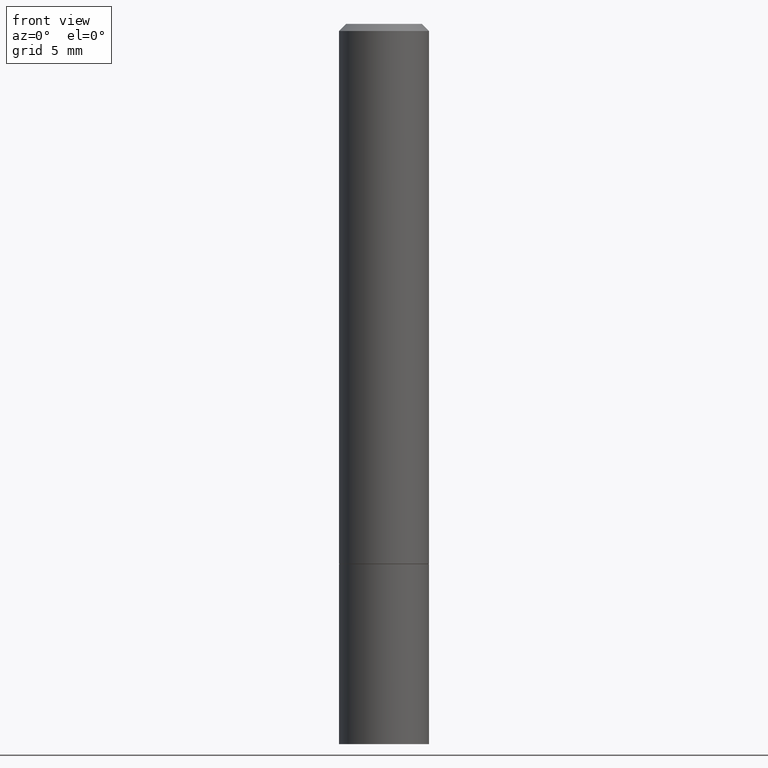
[diagram: clean part render]
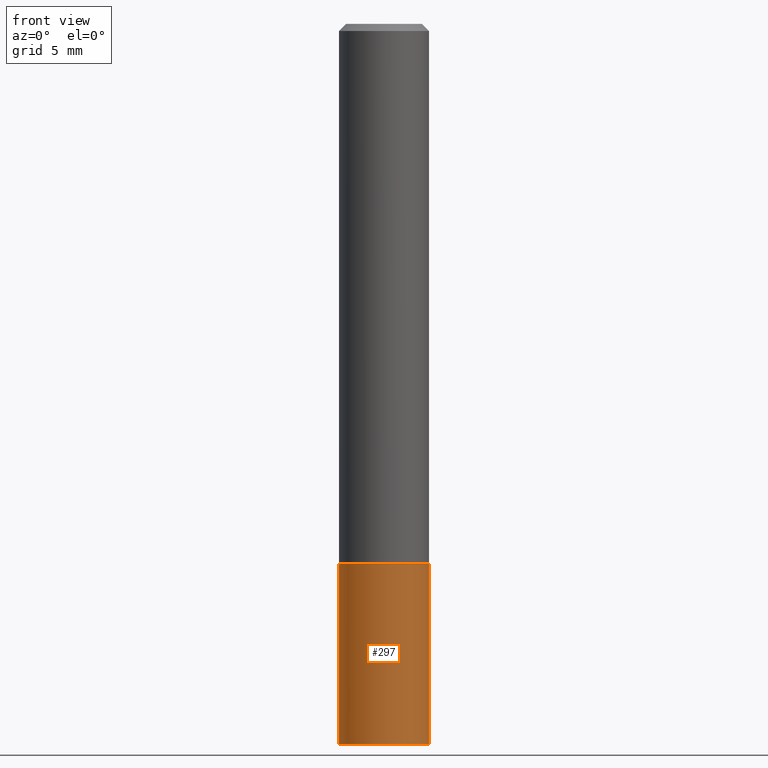
[diagram: same view with one face highlighted and labeled with its STEP entity id]
A machine part, front view. The second image highlights one B-rep face of the part: STEP entity #297.
In plain terms, the highlighted cylindrical surface (partial cylindrical patch) has radius 3.175 mm, axis along (-0, 0, 1).
Its self-contained STEP definition (entity closure, byte-faithful):
#22 = EDGE_CURVE ( 'NONE', #335, #222, #183, .T. ) ;
#28 = FACE_OUTER_BOUND ( 'NONE', #30, .T. ) ;
#30 = EDGE_LOOP ( 'NONE', ( #346, #93, #38, #352 ) ) ;
#35 = VERTEX_POINT ( 'NONE', #201 ) ;
#38 = ORIENTED_EDGE ( 'NONE', *, *, #361, .T. ) ;
#43 = DIRECTION ( 'NONE',  ( -2.445468806185136597E-29, 3.491481338843145583E-15, 1.000000000000000000 ) ) ;
#45 = VECTOR ( 'NONE', #287, 39.37007874015748143 ) ;
#63 = CARTESIAN_POINT ( 'NONE',  ( 0.000000000000000000, 0.000000000000000000, 0.000000000000000000 ) ) ;
#88 = CARTESIAN_POINT ( 'NONE',  ( 0.1250000000000000000, -8.728703347107833388E-16, 6.095220969744919741E-30 ) ) ;
#93 = ORIENTED_EDGE ( 'NONE', *, *, #22, .T. ) ;
#104 = VERTEX_POINT ( 'NONE', #250 ) ;
#108 = DIRECTION ( 'NONE',  ( -2.445468806185136877E-29, 3.491481338843145188E-15, 1.000000000000000000 ) ) ;
#120 = LINE ( 'NONE', #348, #126 ) ;
#126 = VECTOR ( 'NONE', #108, 39.37007874015748143 ) ;
#129 = EDGE_CURVE ( 'NONE', #335, #35, #120, .T. ) ;
#142 = DIRECTION ( 'NONE',  ( 1.000000000000000000, -6.982962677686266711E-15, 4.876176775795935793E-29 ) ) ;
#145 = CIRCLE ( 'NONE', #351, 0.1250000000000000000 ) ;
#151 = CARTESIAN_POINT ( 'NONE',  ( 4.890937612370273194E-29, -6.982962677686291165E-15, -2.000000000000000000 ) ) ;
#171 = LINE ( 'NONE', #88, #45 ) ;
#174 = CARTESIAN_POINT ( 'NONE',  ( 3.668203209277704335E-29, -5.237222008264717388E-15, -1.499999999999999778 ) ) ;
#175 = AXIS2_PLACEMENT_3D ( 'NONE', #151, #43, #295 ) ;
#183 = CIRCLE ( 'NONE', #175, 0.1250000000000000000 ) ;
#201 = CARTESIAN_POINT ( 'NONE',  ( -0.1250000000000000000, -5.221913923275378650E-15, -1.499999999999999778 ) ) ;
#209 = CYLINDRICAL_SURFACE ( 'NONE', #268, 0.1250000000000000000 ) ;
#222 = VERTEX_POINT ( 'NONE', #229 ) ;
#229 = CARTESIAN_POINT ( 'NONE',  ( 0.1250000000000000000, -7.855833012397075293E-15, -2.000000000000000000 ) ) ;
#235 = DIRECTION ( 'NONE',  ( -2.445468806185136597E-29, 3.491481338843145583E-15, 1.000000000000000000 ) ) ;
#250 = CARTESIAN_POINT ( 'NONE',  ( 0.1250000000000000000, -6.110092342975501516E-15, -1.499999999999999778 ) ) ;
#264 = CARTESIAN_POINT ( 'NONE',  ( -0.1250000000000000000, -5.221913923275378650E-15, -2.000000000000000000 ) ) ;
#268 = AXIS2_PLACEMENT_3D ( 'NONE', #63, #366, #142 ) ;
#287 = DIRECTION ( 'NONE',  ( -2.445468806185136877E-29, 3.491481338843145188E-15, 1.000000000000000000 ) ) ;
#295 = DIRECTION ( 'NONE',  ( 1.000000000000000000, -6.982962677686270655E-15, 0.000000000000000000 ) ) ;
#297 = ADVANCED_FACE ( 'NONE', ( #28 ), #209, .T. ) ;
#313 = DIRECTION ( 'NONE',  ( 1.000000000000000000, -6.982962677686270655E-15, 0.000000000000000000 ) ) ;
#331 = EDGE_CURVE ( 'NONE', #35, #104, #145, .T. ) ;
#335 = VERTEX_POINT ( 'NONE', #264 ) ;
#346 = ORIENTED_EDGE ( 'NONE', *, *, #129, .F. ) ;
#348 = CARTESIAN_POINT ( 'NONE',  ( -0.1250000000000000000, 8.881784197001252323E-16, -6.148668862818632227E-30 ) ) ;
#351 = AXIS2_PLACEMENT_3D ( 'NONE', #174, #235, #313 ) ;
#352 = ORIENTED_EDGE ( 'NONE', *, *, #331, .F. ) ;
#361 = EDGE_CURVE ( 'NONE', #222, #104, #171, .T. ) ;
#366 = DIRECTION ( 'NONE',  ( -2.445468806185136597E-29, 3.491481338843145583E-15, 1.000000000000000000 ) ) ;